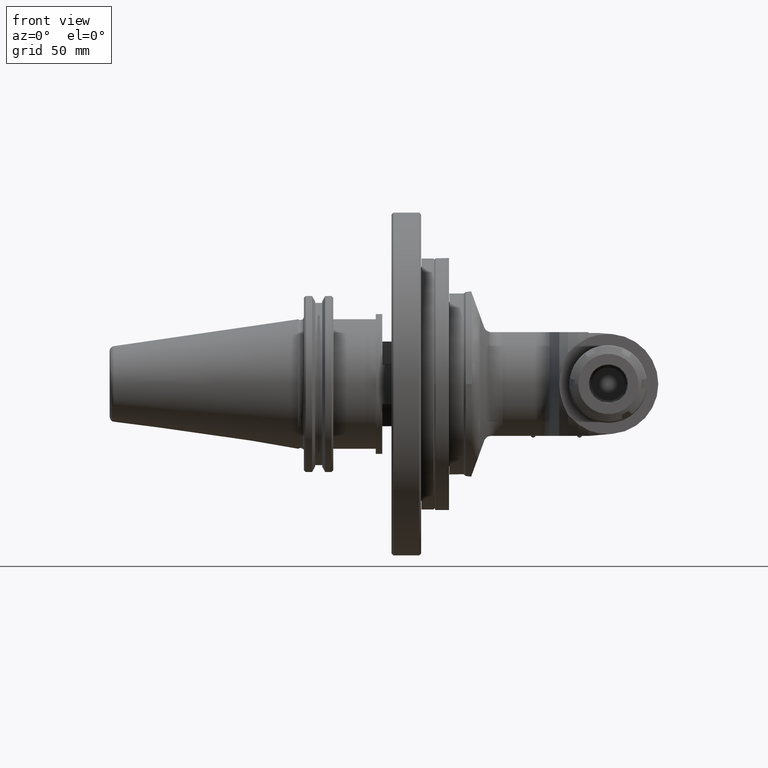
[diagram: clean part render]
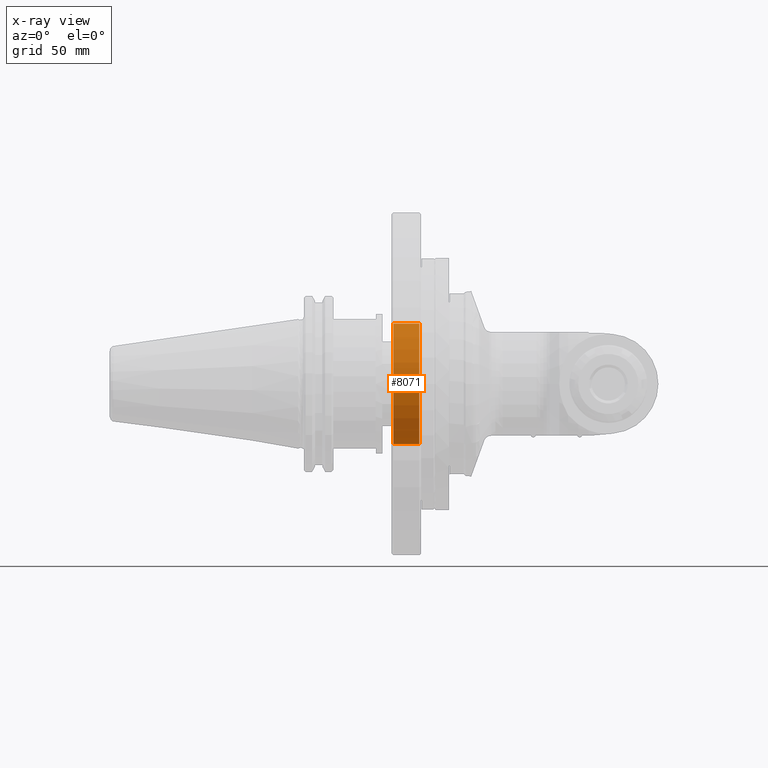
[diagram: x-ray — body ghosted, one internal face saturated and labeled with its STEP entity id]
A machine part, front view, then the same camera in x-ray: the body is ghosted and one INTERNAL B-rep face — a face not visible from any outside direction — is saturated and labeled: STEP entity #8071.
In plain terms, the highlighted cylindrical surface (bore or boss wall) has radius 32.5 mm, axis along (-1, -0, 0).
Its self-contained STEP definition (entity closure, byte-faithful):
#564=CYLINDRICAL_SURFACE('',#8950,32.5);
#885=CIRCLE('',#8948,32.5);
#886=CIRCLE('',#8949,32.5);
#887=CIRCLE('',#8951,32.5);
#888=CIRCLE('',#8952,32.5);
#1383=FACE_OUTER_BOUND('',#1938,.T.);
#1938=EDGE_LOOP('',(#7106,#7107,#7108,#7109,#7110,#7111));
#2508=LINE('',#14345,#3074);
#3074=VECTOR('',#11107,32.5);
#3807=VERTEX_POINT('',#14338);
#3808=VERTEX_POINT('',#14339);
#3809=VERTEX_POINT('',#14344);
#3810=VERTEX_POINT('',#14346);
#4921=EDGE_CURVE('',#3807,#3808,#885,.T.);
#4922=EDGE_CURVE('',#3808,#3807,#886,.T.);
#4924=EDGE_CURVE('',#3808,#3809,#2508,.T.);
#4925=EDGE_CURVE('',#3810,#3809,#887,.T.);
#4926=EDGE_CURVE('',#3809,#3810,#888,.T.);
#7106=ORIENTED_EDGE('',*,*,#4921,.F.);
#7107=ORIENTED_EDGE('',*,*,#4922,.F.);
#7108=ORIENTED_EDGE('',*,*,#4924,.T.);
#7109=ORIENTED_EDGE('',*,*,#4925,.F.);
#7110=ORIENTED_EDGE('',*,*,#4926,.F.);
#7111=ORIENTED_EDGE('',*,*,#4924,.F.);
#8071=ADVANCED_FACE('',(#1383),#564,.F.);
#8948=AXIS2_PLACEMENT_3D('',#14340,#11100,#11101);
#8949=AXIS2_PLACEMENT_3D('',#14341,#11102,#11103);
#8950=AXIS2_PLACEMENT_3D('',#14343,#11105,#11106);
#8951=AXIS2_PLACEMENT_3D('',#14347,#11108,#11109);
#8952=AXIS2_PLACEMENT_3D('',#14348,#11110,#11111);
#11100=DIRECTION('center_axis',(-1.,0.,0.));
#11101=DIRECTION('ref_axis',(0.,0.,-1.));
#11102=DIRECTION('center_axis',(-1.,0.,0.));
#11103=DIRECTION('ref_axis',(0.,0.,-1.));
#11105=DIRECTION('center_axis',(-1.,0.,0.));
#11106=DIRECTION('ref_axis',(0.,0.,1.));
#11107=DIRECTION('',(-1.,0.,0.));
#11108=DIRECTION('center_axis',(1.,0.,0.));
#11109=DIRECTION('ref_axis',(0.,0.,-1.));
#11110=DIRECTION('center_axis',(1.,0.,0.));
#11111=DIRECTION('ref_axis',(0.,0.,-1.));
#14338=CARTESIAN_POINT('',(-13.99997979494,0.,32.5));
#14339=CARTESIAN_POINT('',(-13.99997979494,-3.9801020972289E-15,-32.5));
#14340=CARTESIAN_POINT('Origin',(-13.99997979494,0.,0.));
#14341=CARTESIAN_POINT('Origin',(-13.99997979494,0.,0.));
#14343=CARTESIAN_POINT('Origin',(-13.,0.,0.));
#14344=CARTESIAN_POINT('',(-28.00002020506,-3.9801020972289E-15,-32.5));
#14345=CARTESIAN_POINT('',(-13.,-3.9801020972289E-15,-32.5));
#14346=CARTESIAN_POINT('',(-28.00002020506,0.,32.5));
#14347=CARTESIAN_POINT('Origin',(-28.00002020506,0.,0.));
#14348=CARTESIAN_POINT('Origin',(-28.00002020506,0.,0.));